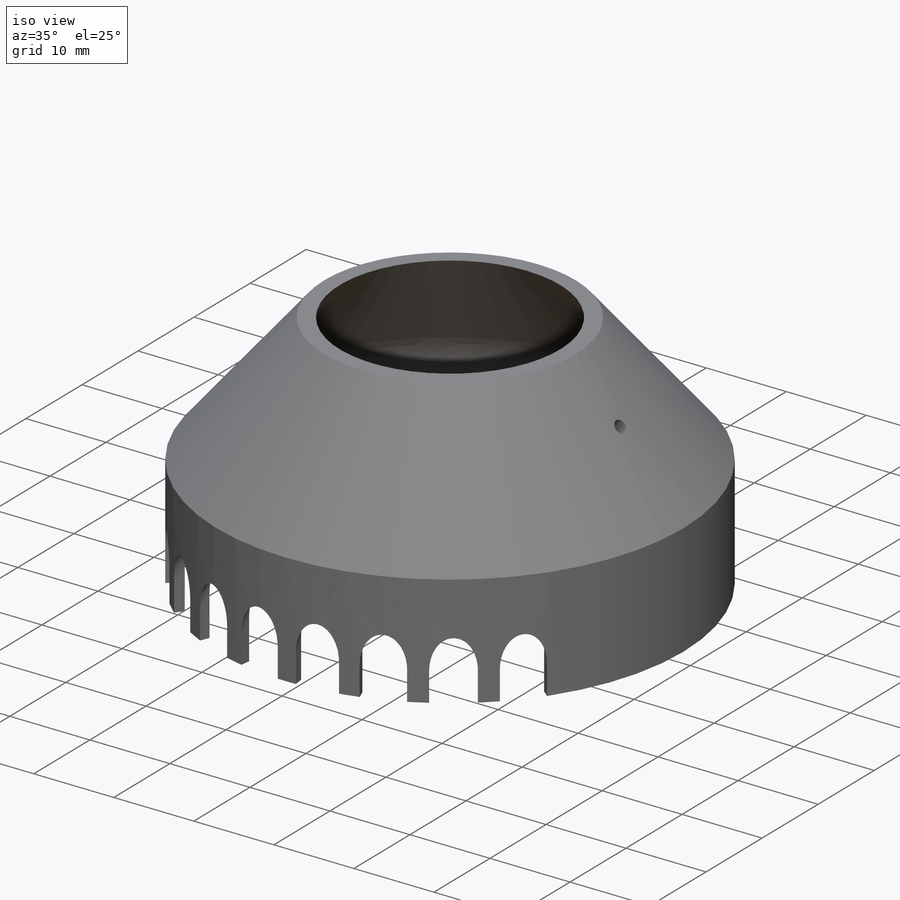
[diagram: iso view]
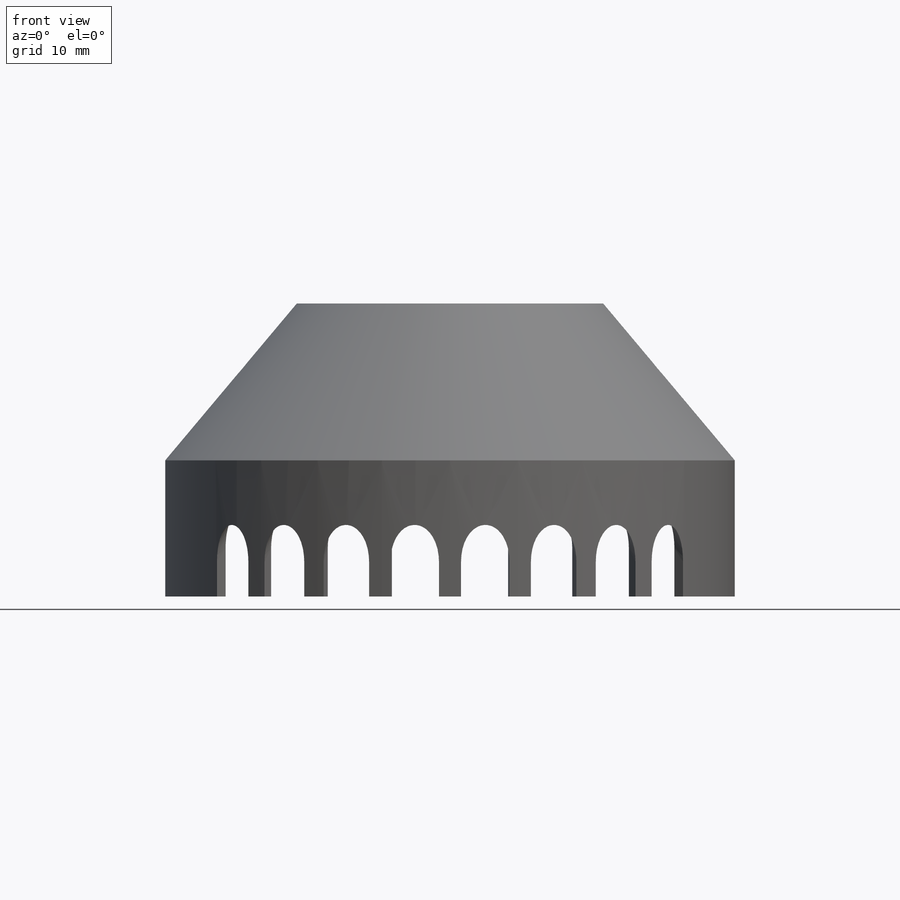
[diagram: front view]
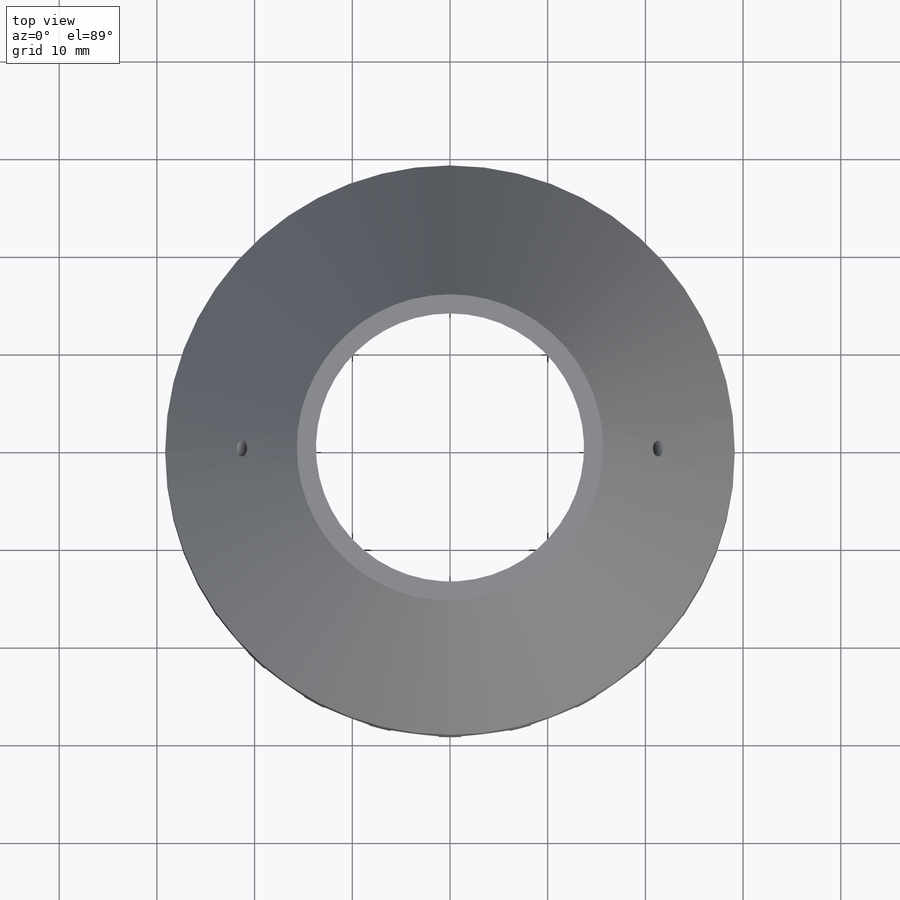
[diagram: top view]
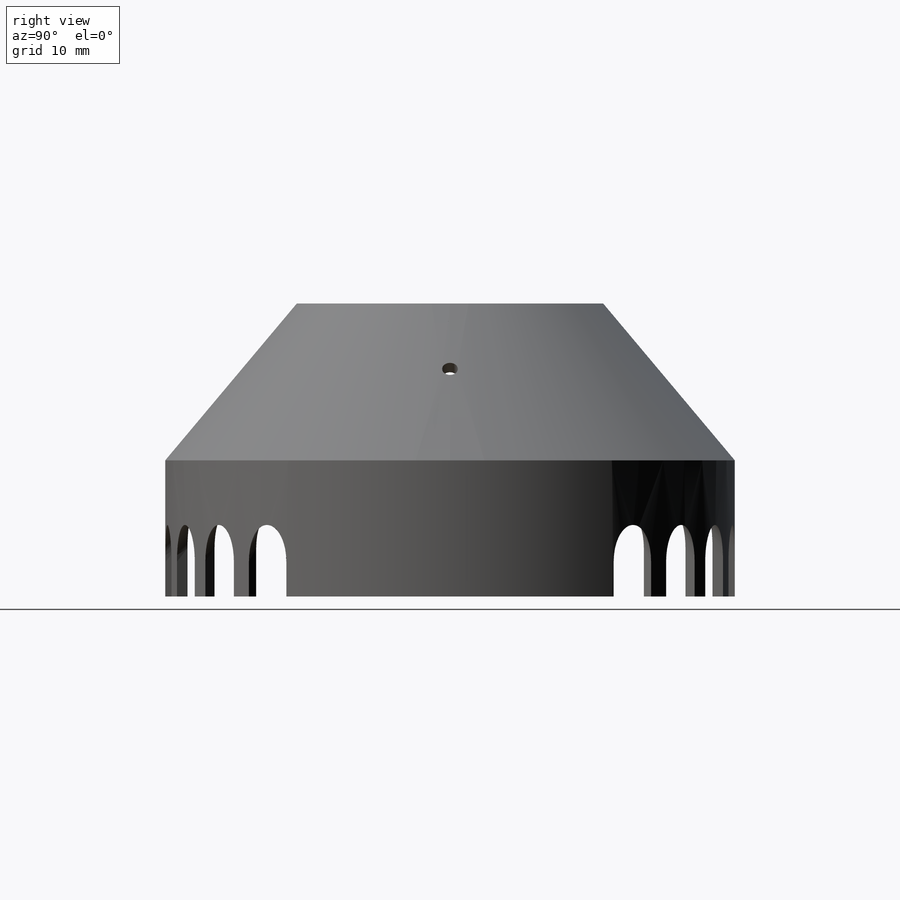
[diagram: right view]
SOLIDWORKS PART (.sldprt)
format: sldprt  version: not decoded by parser v0  size: 393,216 bytes
history: native  units: mm
features: sketch x6, plane x4, cut_extrude x2, material x1, revolve x1, hole x1, mirror x1 (+12 scaffold rows collapsed)
feature tree (28):
  scaffold x12  (default folders/planes/origin — collapsed)
  material  "Material <not specified>"
  sketch  "Cone Cross Section"  dims[c1.D6=10.0mm c1.D1=~15.396542mm c1.D2=35.0mm c1.D3=1.5mm c1.D4=~698.131701mm c2.D1=28.0mm c2.D2=~17.019969mm c2.D4=30.0mm c2.D5=~1.149067mm c2.D7=~13.944212mm]
  revolve  "Revolve1"  [1 undecoded]
  sketch  "Support Hole Plane Def Line"  dims[D1=10.0mm]
  plane  "Support Hole Plane 1"
  plane  "Support Hole Plane 2"
  sketch  "Sketch3"  dims[D1=~3.448977mm]
  sketch  "Sketch4"  dims[D1=~3.448977mm]
  cut_extrude  "Support Hole 1"  [1 undecoded]
  hole  "Support Hole 2"  [1 undecoded]
  sketch  "Sketch5"  dims[D1=~1.292419mm D2=5.0mm]
  cut_extrude  "Turn Tool Channel"  [1 undecoded]
  plane  "Plane4"  Offset=0mm
  sketch  "KeyPieceRotationArcCopy"  dims[D1=8.0 D3=50.0mm D2=1.0 D4=50.0mm]
  plane  "Center Mirror Plane"
  mirror  "Mirror1"
decode coverage: 6 of 11 modeling features carry decoded parameters
note: ~ marks probable driven/reference dimensions
note: 4 parameter values undecoded
summary: no parameter record found for 4 features
note: suppression state not decoded; provenance and decode notes live in map.json
